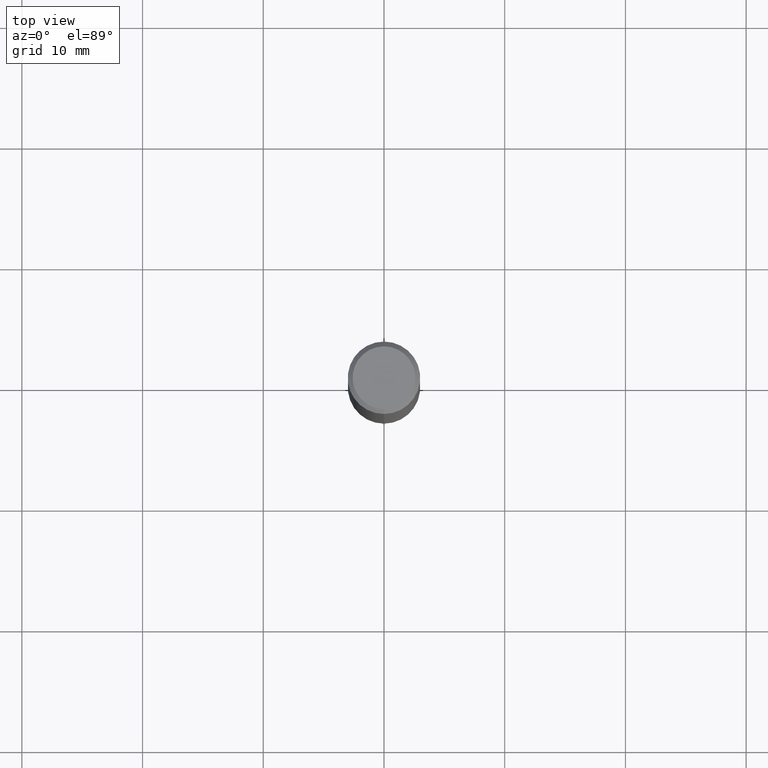
[diagram: clean part render]
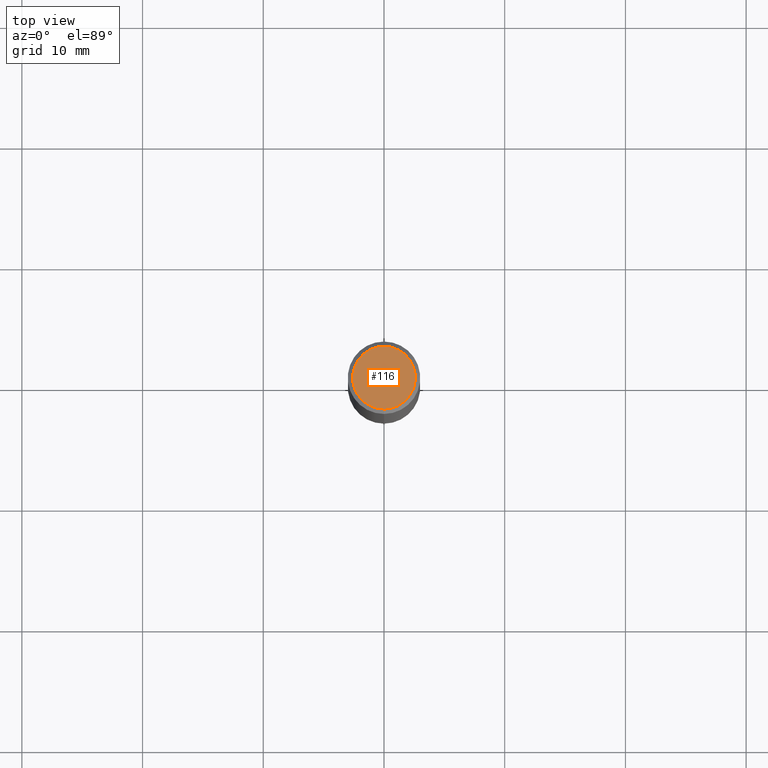
[diagram: same view with one face highlighted and labeled with its STEP entity id]
A machine part, top view. The second image highlights one B-rep face of the part: STEP entity #116.
In plain terms, the highlighted planar face has unit normal (-0, 0, 1).
Its self-contained STEP definition (entity closure, byte-faithful):
#84=EDGE_CURVE('',#160,#142,#205,.T.);
#116=ADVANCED_FACE('',(#242),#243,.T.);
#142=VERTEX_POINT('',#271);
#160=VERTEX_POINT('',#290);
#162=EDGE_CURVE('',#142,#160,#292,.T.);
#205=CIRCLE('',#333,2.6);
#242=FACE_OUTER_BOUND('',#379,.T.);
#243=PLANE('',#380);
#271=CARTESIAN_POINT('',(0.0,2.6,0.0));
#290=CARTESIAN_POINT('',(3.18397651993818E-016,-2.6,0.0));
#292=CIRCLE('',#444,2.6);
#333=AXIS2_PLACEMENT_3D('',#476,#477,#478);
#379=EDGE_LOOP('',(#535,#536));
#380=AXIS2_PLACEMENT_3D('',#537,#538,#539);
#444=AXIS2_PLACEMENT_3D('',#585,#586,#587);
#476=CARTESIAN_POINT('',(0.0,0.0,0.0));
#477=DIRECTION('',(0.0,0.0,-1.0));
#478=DIRECTION('',(0.0,1.0,0.0));
#535=ORIENTED_EDGE('',*,*,#162,.F.);
#536=ORIENTED_EDGE('',*,*,#84,.F.);
#537=CARTESIAN_POINT('',(0.0,1.3,0.0));
#538=DIRECTION('',(-0.0,0.0,1.0));
#539=DIRECTION('',(0.0,-1.0,0.0));
#585=CARTESIAN_POINT('',(0.0,0.0,0.0));
#586=DIRECTION('',(0.0,0.0,-1.0));
#587=DIRECTION('',(0.0,1.0,0.0));